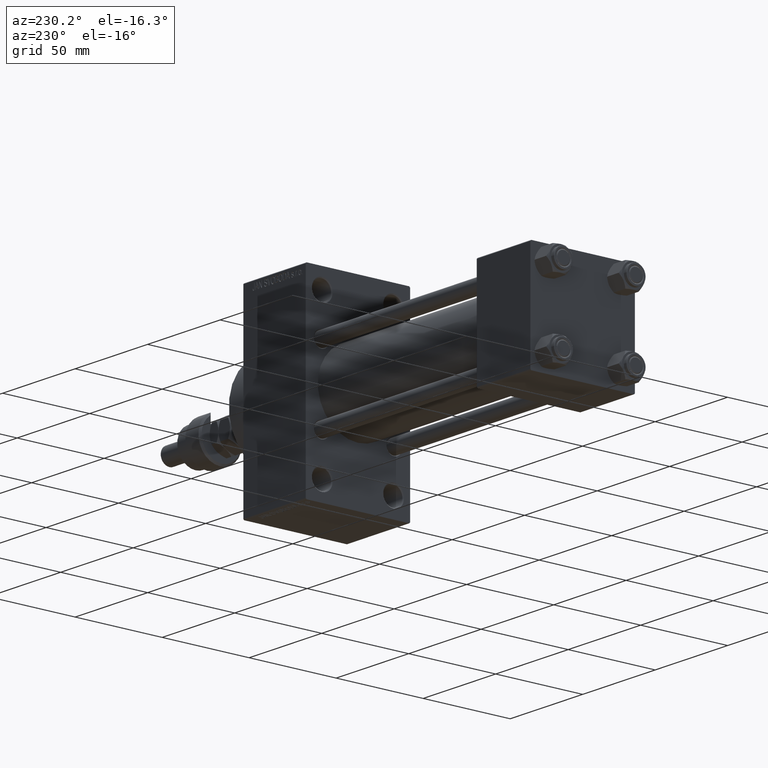
[diagram: clean part render]
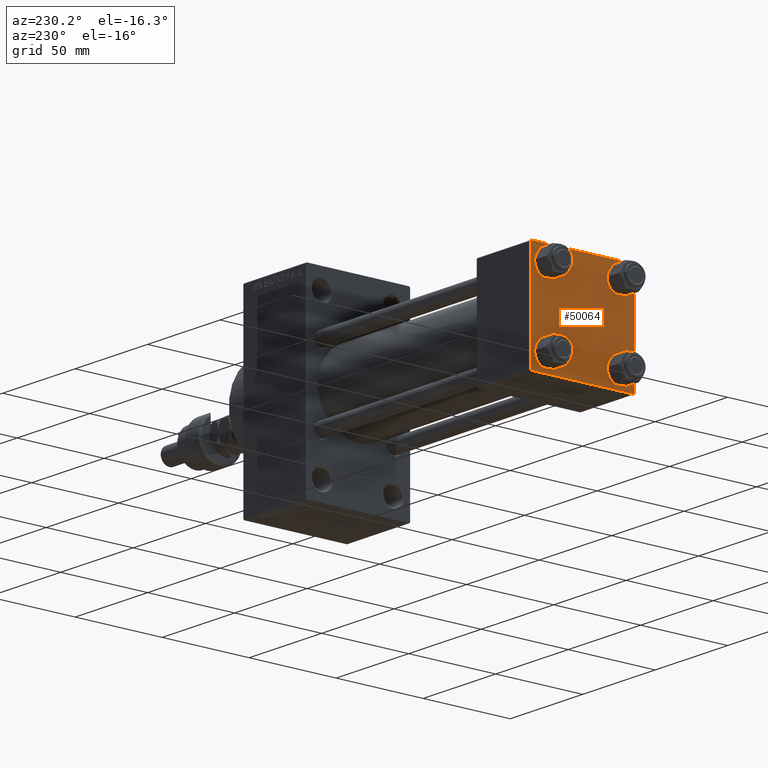
[diagram: same view with one face highlighted and labeled with its STEP entity id]
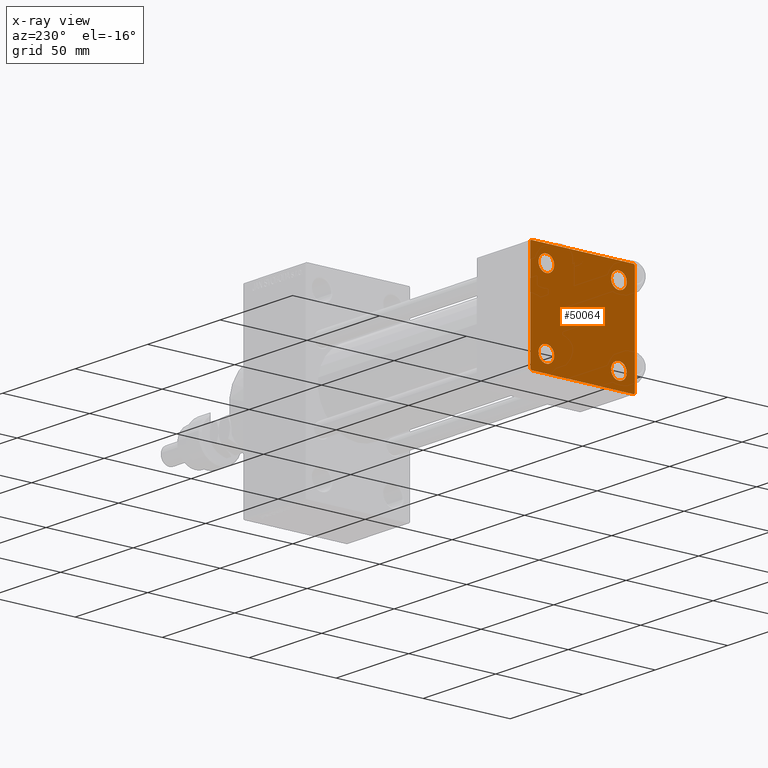
[diagram: x-ray of the same camera — body ghosted, the highlighted face saturated]
A machine part, auxiliary view. The second image highlights one B-rep face of the part: STEP entity #50064.
The next image is the same camera in x-ray: the body ghosted, the highlighted face saturated — about 0% of this face is hidden behind the body in this view.
In plain terms, the highlighted planar face has unit normal (-1, 0, 0).
Its self-contained STEP definition (entity closure, byte-faithful):
#328 = CIRCLE ( 'NONE', #18125, 4.500000000000017764 ) ;
#364 = CARTESIAN_POINT ( 'NONE',  ( 0.000000000000000000, 20.84999999999999787, -16.34999999999998366 ) ) ;
#733 = DIRECTION ( 'NONE',  ( 0.000000000000000000, 0.000000000000000000, 1.000000000000000000 ) ) ;
#772 = AXIS2_PLACEMENT_3D ( 'NONE', #13992, #26119, #7142 ) ;
#926 = CARTESIAN_POINT ( 'NONE',  ( 0.000000000000000000, -20.84999999999999076, 16.34999999999998721 ) ) ;
#1224 = LINE ( 'NONE', #12389, #47301 ) ;
#1410 = AXIS2_PLACEMENT_3D ( 'NONE', #48373, #14208, #17759 ) ;
#1705 = PLANE ( 'NONE',  #16930 ) ;
#1782 = EDGE_CURVE ( 'NONE', #26120, #27266, #2692, .T. ) ;
#1948 = DIRECTION ( 'NONE',  ( 1.000000000000000000, -0.000000000000000000, 0.000000000000000000 ) ) ;
#1964 = EDGE_CURVE ( 'NONE', #40923, #8003, #7749, .T. ) ;
#2032 = CARTESIAN_POINT ( 'NONE',  ( 0.000000000000000000, 29.49999999999997868, -30.00000000000000000 ) ) ;
#2178 = CIRCLE ( 'NONE', #18365, 4.500000000000017764 ) ;
#2574 = DIRECTION ( 'NONE',  ( 1.000000000000000000, -0.000000000000000000, 0.000000000000000000 ) ) ;
#2692 = CIRCLE ( 'NONE', #19687, 4.500000000000017764 ) ;
#2998 = EDGE_CURVE ( 'NONE', #28448, #13613, #11330, .T. ) ;
#3068 = VERTEX_POINT ( 'NONE', #37887 ) ;
#3101 = VERTEX_POINT ( 'NONE', #31301 ) ;
#3220 = CARTESIAN_POINT ( 'NONE',  ( 0.000000000000000000, 29.99999999999999289, 30.00000000000000000 ) ) ;
#3312 = FACE_BOUND ( 'NONE', #47793, .T. ) ;
#3515 = EDGE_CURVE ( 'NONE', #40518, #27000, #328, .T. ) ;
#3971 = DIRECTION ( 'NONE',  ( 0.000000000000000000, 0.000000000000000000, -1.000000000000000000 ) ) ;
#5203 = ORIENTED_EDGE ( 'NONE', *, *, #33202, .T. ) ;
#5443 = EDGE_CURVE ( 'NONE', #21638, #43768, #29069, .T. ) ;
#5749 = CARTESIAN_POINT ( 'NONE',  ( 0.000000000000000000, -20.84999999999999076, -20.85000000000000497 ) ) ;
#5834 = LINE ( 'NONE', #13437, #20999 ) ;
#7142 = DIRECTION ( 'NONE',  ( 0.000000000000000000, 0.000000000000000000, 1.000000000000000000 ) ) ;
#7272 = EDGE_CURVE ( 'NONE', #3068, #16481, #1224, .T. ) ;
#7749 = LINE ( 'NONE', #11064, #15648 ) ;
#7882 = EDGE_LOOP ( 'NONE', ( #10128, #5203 ) ) ;
#8003 = VERTEX_POINT ( 'NONE', #13765 ) ;
#8095 = FACE_BOUND ( 'NONE', #7882, .T. ) ;
#8123 = CARTESIAN_POINT ( 'NONE',  ( 0.000000000000000000, 20.84999999999999787, -20.85000000000000142 ) ) ;
#8876 = DIRECTION ( 'NONE',  ( 0.000000000000000000, 0.000000000000000000, 1.000000000000000000 ) ) ;
#10118 = ORIENTED_EDGE ( 'NONE', *, *, #1964, .T. ) ;
#10128 = ORIENTED_EDGE ( 'NONE', *, *, #3515, .T. ) ;
#11061 = EDGE_CURVE ( 'NONE', #3068, #8003, #32187, .T. ) ;
#11064 = CARTESIAN_POINT ( 'NONE',  ( 0.000000000000000000, -29.75000000000001066, -29.75000000000001066 ) ) ;
#11113 = ORIENTED_EDGE ( 'NONE', *, *, #19111, .F. ) ;
#11330 = LINE ( 'NONE', #33838, #34236 ) ;
#12337 = ORIENTED_EDGE ( 'NONE', *, *, #37758, .T. ) ;
#12389 = CARTESIAN_POINT ( 'NONE',  ( -0.000000000000000000, -29.74999999999999645, 29.74999999999999645 ) ) ;
#13125 = DIRECTION ( 'NONE',  ( -0.000000000000000000, 0.7071067811865474617, 0.7071067811865474617 ) ) ;
#13437 = CARTESIAN_POINT ( 'NONE',  ( 0.000000000000000000, 29.99999999999999289, -30.00000000000000000 ) ) ;
#13613 = VERTEX_POINT ( 'NONE', #2032 ) ;
#13765 = CARTESIAN_POINT ( 'NONE',  ( 0.000000000000000000, -30.00000000000000000, -29.50000000000001776 ) ) ;
#13914 = LINE ( 'NONE', #28840, #36568 ) ;
#13992 = CARTESIAN_POINT ( 'NONE',  ( 0.000000000000000000, -20.84999999999999076, -20.85000000000000497 ) ) ;
#14208 = DIRECTION ( 'NONE',  ( 1.000000000000000000, -0.000000000000000000, 0.000000000000000000 ) ) ;
#14225 = DIRECTION ( 'NONE',  ( 0.000000000000000000, 0.000000000000000000, 1.000000000000000000 ) ) ;
#14720 = EDGE_CURVE ( 'NONE', #15875, #3101, #2178, .T. ) ;
#14928 = ORIENTED_EDGE ( 'NONE', *, *, #47819, .T. ) ;
#14947 = DIRECTION ( 'NONE',  ( -0.000000000000000000, 0.000000000000000000, 1.000000000000000000 ) ) ;
#15648 = VECTOR ( 'NONE', #34329, 1000.000000000000114 ) ;
#15686 = EDGE_LOOP ( 'NONE', ( #35094, #44685, #18420, #10118, #49764, #46716, #11113, #26440 ) ) ;
#15702 = FACE_OUTER_BOUND ( 'NONE', #15686, .T. ) ;
#15875 = VERTEX_POINT ( 'NONE', #34958 ) ;
#16481 = VERTEX_POINT ( 'NONE', #41117 ) ;
#16490 = DIRECTION ( 'NONE',  ( 0.000000000000000000, -1.000000000000000000, -1.156482317317871725E-16 ) ) ;
#16840 = DIRECTION ( 'NONE',  ( 1.000000000000000000, -0.000000000000000000, 0.000000000000000000 ) ) ;
#16930 = AXIS2_PLACEMENT_3D ( 'NONE', #30638, #19251, #14947 ) ;
#16943 = CARTESIAN_POINT ( 'NONE',  ( 0.000000000000000000, 29.74999999999999645, 29.74999999999999645 ) ) ;
#16968 = CIRCLE ( 'NONE', #772, 4.500000000000017764 ) ;
#16996 = CARTESIAN_POINT ( 'NONE',  ( 0.000000000000000000, -30.00000000000000000, 29.99999999999999289 ) ) ;
#17242 = DIRECTION ( 'NONE',  ( 0.000000000000000000, 0.000000000000000000, -1.000000000000000000 ) ) ;
#17392 = DIRECTION ( 'NONE',  ( 0.000000000000000000, 0.000000000000000000, 1.000000000000000000 ) ) ;
#17649 = CIRCLE ( 'NONE', #40290, 4.500000000000017764 ) ;
#17759 = DIRECTION ( 'NONE',  ( 0.000000000000000000, 0.000000000000000000, 1.000000000000000000 ) ) ;
#18125 = AXIS2_PLACEMENT_3D ( 'NONE', #46791, #35409, #733 ) ;
#18365 = AXIS2_PLACEMENT_3D ( 'NONE', #30058, #33352, #18934 ) ;
#18420 = ORIENTED_EDGE ( 'NONE', *, *, #48009, .T. ) ;
#18934 = DIRECTION ( 'NONE',  ( 0.000000000000000000, 0.000000000000000000, 1.000000000000000000 ) ) ;
#19111 = EDGE_CURVE ( 'NONE', #21638, #16481, #13914, .T. ) ;
#19251 = DIRECTION ( 'NONE',  ( -1.000000000000000000, 0.000000000000000000, -0.000000000000000000 ) ) ;
#19637 = CIRCLE ( 'NONE', #23675, 4.500000000000017764 ) ;
#19687 = AXIS2_PLACEMENT_3D ( 'NONE', #8123, #31907, #8876 ) ;
#20112 = VECTOR ( 'NONE', #3971, 1000.000000000000000 ) ;
#20642 = ORIENTED_EDGE ( 'NONE', *, *, #14720, .T. ) ;
#20999 = VECTOR ( 'NONE', #16490, 1000.000000000000000 ) ;
#21613 = CARTESIAN_POINT ( 'NONE',  ( 0.000000000000000000, 20.84999999999999787, 20.85000000000000142 ) ) ;
#21638 = VERTEX_POINT ( 'NONE', #38423 ) ;
#22330 = VERTEX_POINT ( 'NONE', #32464 ) ;
#23195 = CIRCLE ( 'NONE', #43403, 4.500000000000017764 ) ;
#23608 = EDGE_CURVE ( 'NONE', #27266, #26120, #19637, .T. ) ;
#23675 = AXIS2_PLACEMENT_3D ( 'NONE', #25605, #2574, #14225 ) ;
#24108 = CARTESIAN_POINT ( 'NONE',  ( 0.000000000000000000, -20.84999999999999076, 25.35000000000002274 ) ) ;
#24162 = VERTEX_POINT ( 'NONE', #24809 ) ;
#24694 = CARTESIAN_POINT ( 'NONE',  ( 0.000000000000000000, 29.99999999999999289, 29.50000000000000000 ) ) ;
#24809 = CARTESIAN_POINT ( 'NONE',  ( 0.000000000000000000, -20.84999999999999076, -25.35000000000002274 ) ) ;
#25605 = CARTESIAN_POINT ( 'NONE',  ( 0.000000000000000000, 20.84999999999999787, -20.85000000000000142 ) ) ;
#26119 = DIRECTION ( 'NONE',  ( 1.000000000000000000, -0.000000000000000000, 0.000000000000000000 ) ) ;
#26120 = VERTEX_POINT ( 'NONE', #47009 ) ;
#26241 = LINE ( 'NONE', #3220, #20112 ) ;
#26327 = FACE_BOUND ( 'NONE', #32915, .T. ) ;
#26440 = ORIENTED_EDGE ( 'NONE', *, *, #5443, .T. ) ;
#27000 = VERTEX_POINT ( 'NONE', #926 ) ;
#27266 = VERTEX_POINT ( 'NONE', #364 ) ;
#27438 = ORIENTED_EDGE ( 'NONE', *, *, #23608, .T. ) ;
#28448 = VERTEX_POINT ( 'NONE', #30458 ) ;
#28840 = CARTESIAN_POINT ( 'NONE',  ( 0.000000000000000000, 29.99999999999999289, 30.00000000000000000 ) ) ;
#28881 = VECTOR ( 'NONE', #17242, 1000.000000000000000 ) ;
#29069 = LINE ( 'NONE', #16943, #44803 ) ;
#30058 = CARTESIAN_POINT ( 'NONE',  ( 0.000000000000000000, 20.84999999999999787, 20.85000000000000142 ) ) ;
#30458 = CARTESIAN_POINT ( 'NONE',  ( 0.000000000000000000, 29.99999999999999289, -29.50000000000000000 ) ) ;
#30638 = CARTESIAN_POINT ( 'NONE',  ( 0.000000000000000000, 0.000000000000000000, 0.000000000000000000 ) ) ;
#31301 = CARTESIAN_POINT ( 'NONE',  ( 0.000000000000000000, 20.84999999999999787, 16.34999999999998366 ) ) ;
#31784 = EDGE_CURVE ( 'NONE', #22330, #24162, #23195, .T. ) ;
#31907 = DIRECTION ( 'NONE',  ( 1.000000000000000000, -0.000000000000000000, 0.000000000000000000 ) ) ;
#32187 = LINE ( 'NONE', #16996, #28881 ) ;
#32464 = CARTESIAN_POINT ( 'NONE',  ( 0.000000000000000000, -20.84999999999999076, -16.34999999999998721 ) ) ;
#32915 = EDGE_LOOP ( 'NONE', ( #46689, #14928 ) ) ;
#33013 = DIRECTION ( 'NONE',  ( 0.000000000000000000, 0.000000000000000000, 1.000000000000000000 ) ) ;
#33202 = EDGE_CURVE ( 'NONE', #27000, #40518, #44939, .T. ) ;
#33352 = DIRECTION ( 'NONE',  ( 1.000000000000000000, -0.000000000000000000, 0.000000000000000000 ) ) ;
#33838 = CARTESIAN_POINT ( 'NONE',  ( 0.000000000000000000, 29.74999999999957723, -29.75000000000040501 ) ) ;
#34236 = VECTOR ( 'NONE', #42176, 999.9999999999998863 ) ;
#34329 = DIRECTION ( 'NONE',  ( 0.000000000000000000, -0.7071067811865474617, 0.7071067811865474617 ) ) ;
#34413 = EDGE_LOOP ( 'NONE', ( #20642, #12337 ) ) ;
#34958 = CARTESIAN_POINT ( 'NONE',  ( 0.000000000000000000, 20.84999999999999787, 25.35000000000001918 ) ) ;
#35094 = ORIENTED_EDGE ( 'NONE', *, *, #45963, .T. ) ;
#35409 = DIRECTION ( 'NONE',  ( 1.000000000000000000, -0.000000000000000000, 0.000000000000000000 ) ) ;
#36568 = VECTOR ( 'NONE', #44766, 1000.000000000000000 ) ;
#37155 = DIRECTION ( 'NONE',  ( 0.000000000000000000, 0.7071067811865474617, -0.7071067811865474617 ) ) ;
#37758 = EDGE_CURVE ( 'NONE', #3101, #15875, #17649, .T. ) ;
#37887 = CARTESIAN_POINT ( 'NONE',  ( 0.000000000000000000, -30.00000000000000000, 29.49999999999999289 ) ) ;
#38423 = CARTESIAN_POINT ( 'NONE',  ( 0.000000000000000000, 29.49999999999999289, 30.00000000000000000 ) ) ;
#40290 = AXIS2_PLACEMENT_3D ( 'NONE', #21613, #16840, #33013 ) ;
#40518 = VERTEX_POINT ( 'NONE', #24108 ) ;
#40923 = VERTEX_POINT ( 'NONE', #43038 ) ;
#41117 = CARTESIAN_POINT ( 'NONE',  ( 0.000000000000000000, -29.49999999999998579, 29.99999999999999289 ) ) ;
#42176 = DIRECTION ( 'NONE',  ( -0.000000000000000000, -0.7071067811865574537, -0.7071067811865376918 ) ) ;
#43038 = CARTESIAN_POINT ( 'NONE',  ( 0.000000000000000000, -29.50000000000000000, -30.00000000000000711 ) ) ;
#43403 = AXIS2_PLACEMENT_3D ( 'NONE', #5749, #1948, #17392 ) ;
#43768 = VERTEX_POINT ( 'NONE', #24694 ) ;
#44685 = ORIENTED_EDGE ( 'NONE', *, *, #2998, .T. ) ;
#44766 = DIRECTION ( 'NONE',  ( 0.000000000000000000, -1.000000000000000000, -1.156482317317871725E-16 ) ) ;
#44803 = VECTOR ( 'NONE', #37155, 1000.000000000000114 ) ;
#44939 = CIRCLE ( 'NONE', #1410, 4.500000000000017764 ) ;
#45963 = EDGE_CURVE ( 'NONE', #43768, #28448, #26241, .T. ) ;
#46689 = ORIENTED_EDGE ( 'NONE', *, *, #31784, .T. ) ;
#46716 = ORIENTED_EDGE ( 'NONE', *, *, #7272, .T. ) ;
#46791 = CARTESIAN_POINT ( 'NONE',  ( 0.000000000000000000, -20.84999999999999076, 20.85000000000000497 ) ) ;
#47009 = CARTESIAN_POINT ( 'NONE',  ( 0.000000000000000000, 20.84999999999999787, -25.35000000000001918 ) ) ;
#47301 = VECTOR ( 'NONE', #13125, 1000.000000000000114 ) ;
#47793 = EDGE_LOOP ( 'NONE', ( #27438, #50028 ) ) ;
#47819 = EDGE_CURVE ( 'NONE', #24162, #22330, #16968, .T. ) ;
#48009 = EDGE_CURVE ( 'NONE', #13613, #40923, #5834, .T. ) ;
#48373 = CARTESIAN_POINT ( 'NONE',  ( 0.000000000000000000, -20.84999999999999076, 20.85000000000000497 ) ) ;
#49592 = FACE_BOUND ( 'NONE', #34413, .T. ) ;
#49764 = ORIENTED_EDGE ( 'NONE', *, *, #11061, .F. ) ;
#50028 = ORIENTED_EDGE ( 'NONE', *, *, #1782, .T. ) ;
#50064 = ADVANCED_FACE ( 'NONE', ( #8095, #26327, #3312, #49592, #15702 ), #1705, .T. ) ;